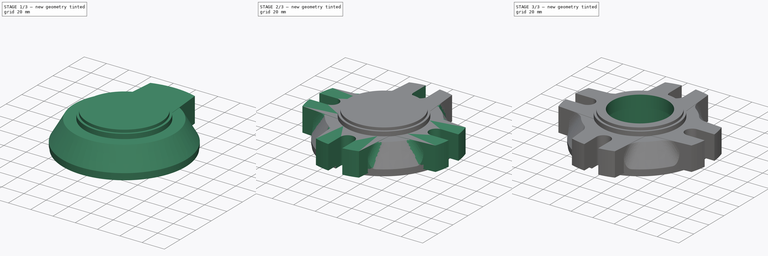
[diagram: build sequence overview — one tinted view per stage of 3, left to right]
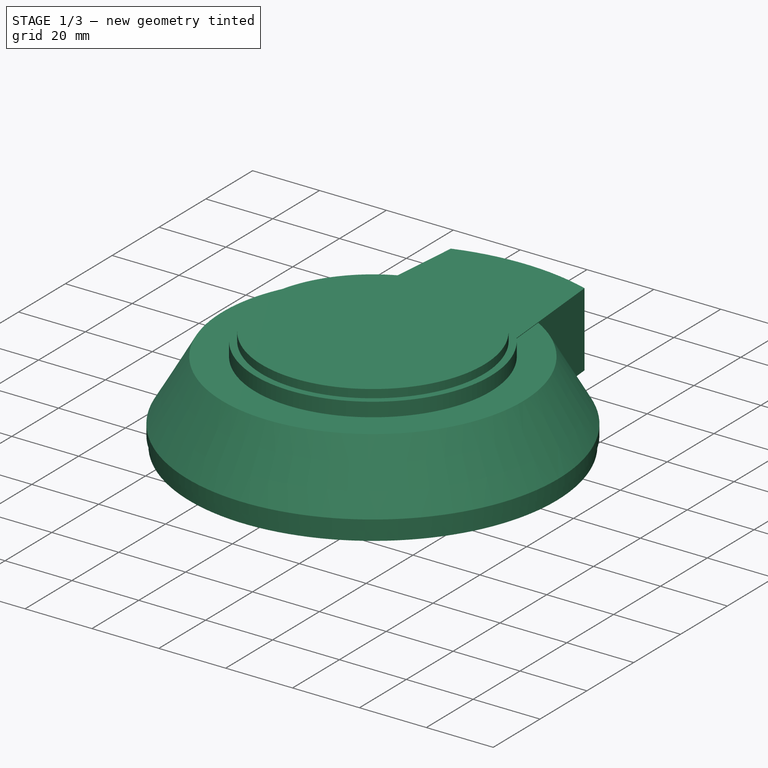
[diagram: stage 1 of 3 — iso view after this stage's code; geometry added in this stage tinted green]
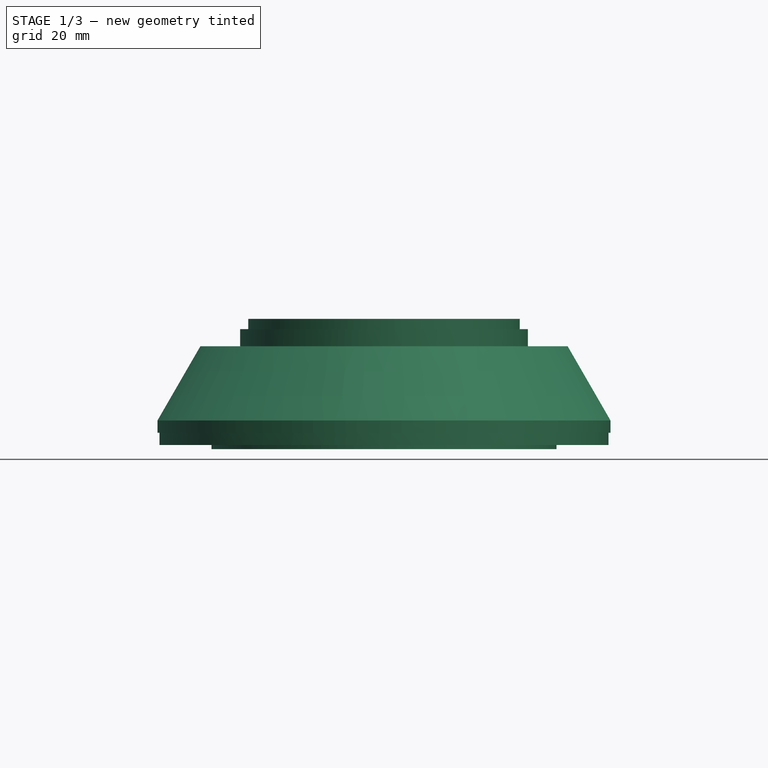
[diagram: stage 1 of 3 — front view after this stage's code; geometry added in this stage tinted green]
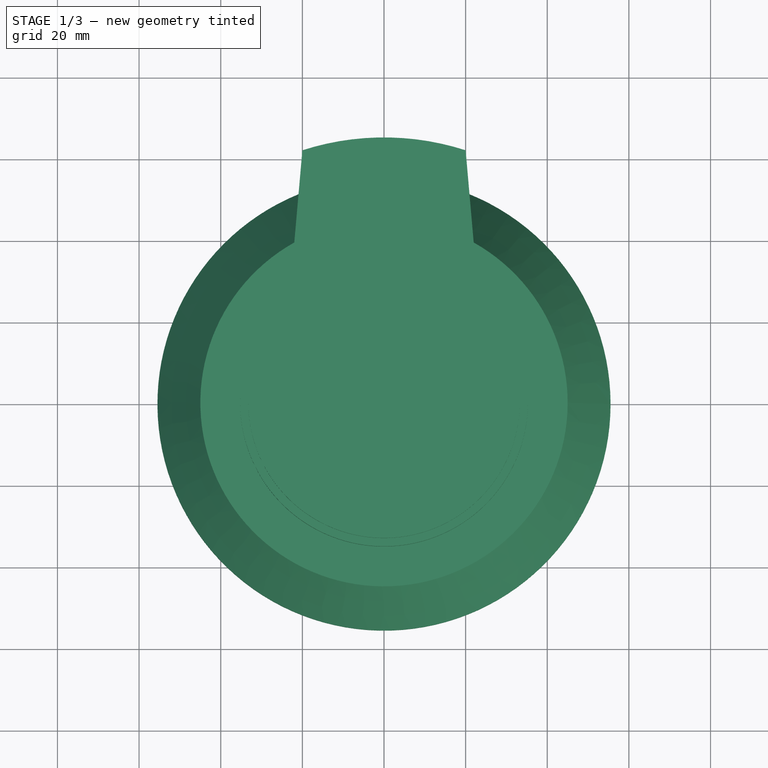
[diagram: stage 1 of 3 — top view after this stage's code; geometry added in this stage tinted green]
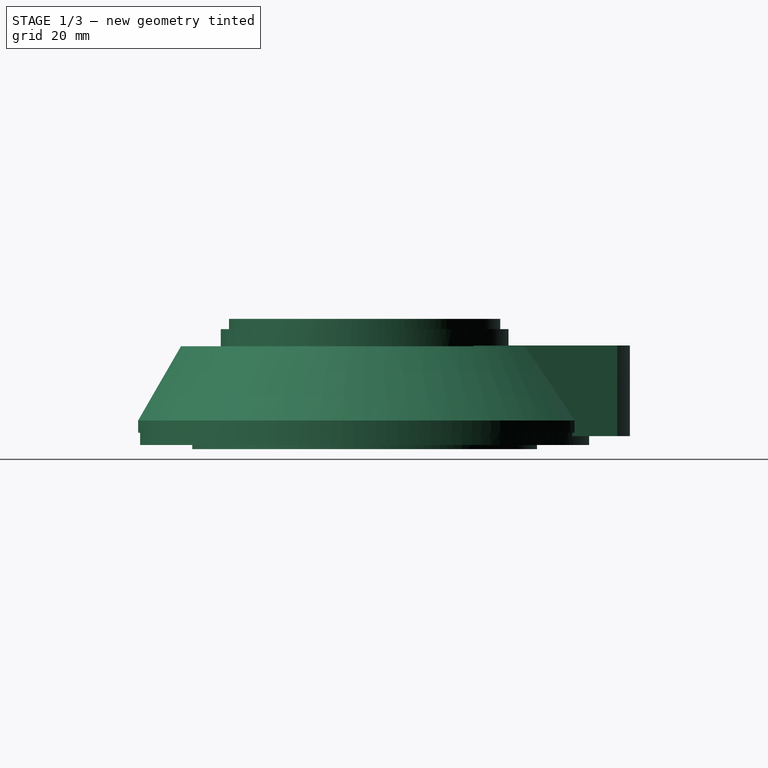
[diagram: stage 1 of 3 — right view after this stage's code; geometry added in this stage tinted green]
FCSTD DOCUMENT  (FreeCAD 0.21R33771 (Git))
Label: ex89
License: All rights reserved
LicenseURL: https://en.wikipedia.org/wiki/All_rights_reserved
objects: Sketcher::SketchObject×5, PartDesign::Pocket×3, PartDesign::Revolution×1, PartDesign::Pad×1, PartDesign::Fillet×1, PartDesign::PolarPattern×1, PartDesign::Body×1
note: 19 computed .brp shape members not serialized (recipe doc carries the construction recipe); baked Part::Feature solids carry a one-line shape summary decoded from their .brp

FEATURE [Sketcher::SketchObject] Sketch
  FullyConstrained = false
  MapMode = 5
  Placement = pos=(0,0,0) rot=(1,0,0;1.5708rad)
  Support = -> [XZ_Plane]
  sketch-geometry (13):
    g0: LineSegment StartX=0 StartY=6.51139 StartZ=0 EndX=33.25 EndY=6.51139 EndZ=0
    g1: LineSegment StartX=33.25 StartY=6.51139 StartZ=0 EndX=33.25 EndY=4.01139 EndZ=0
    g2: LineSegment StartX=33.25 StartY=4.01139 StartZ=0 EndX=35.25 EndY=4.01139 EndZ=0
    g3: LineSegment StartX=35.25 StartY=4.01139 StartZ=0 EndX=35.25 EndY=-0.188607 EndZ=0
    g4: LineSegment StartX=55.5 StartY=-18.3886 StartZ=0 EndX=55.5 EndY=-21.3886 EndZ=0
    g5: LineSegment StartX=55.5 StartY=-21.3886 StartZ=0 EndX=55 EndY=-21.3886 EndZ=0
    g6: LineSegment StartX=55 StartY=-21.3886 StartZ=0 EndX=55 EndY=-24.3886 EndZ=0
    g7: LineSegment StartX=55 StartY=-24.3886 StartZ=0 EndX=42.25 EndY=-24.3886 EndZ=0
    g8: LineSegment StartX=42.25 StartY=-24.3886 StartZ=0 EndX=42.25 EndY=-25.3886 EndZ=0
    g9: LineSegment StartX=42.25 StartY=-25.3886 StartZ=0 EndX=0 EndY=-25.3886 EndZ=0
    g10: LineSegment StartX=0 StartY=6.51139 StartZ=0 EndX=0 EndY=-25.3886 EndZ=0
    g11: LineSegment StartX=35.25 StartY=-0.188607 StartZ=0 EndX=44.9922 EndY=-0.188607 EndZ=0
    g12: LineSegment StartX=44.9922 StartY=-0.188607 StartZ=0 EndX=55.5 EndY=-18.3886 EndZ=0
  constraints (38):
    c: PointOnObject(g0,g-2)
    c: Horizontal(g0)
    c: Coincident(g0,g1)
    c: Coincident(g1,g2)
    c: Coincident(g2,g3)
    c: Coincident(g4,g5)
    c: Coincident(g5,g6)
    c: Coincident(g6,g7)
    c: Horizontal(g7)
    c: Coincident(g7,g8)
    c: Vertical(g8)
    c: Coincident(g8,g9)
    c: Coincident(g0,g10)
    c: Coincident(g10,g9)
    c: Vertical(g10)
    c: Vertical(g1)
    c: Vertical(g3)
    c: Horizontal(g2)
    c: Coincident(g3,g11)
    c: Horizontal(g11)
    c: Coincident(g11,g12)
    c: Coincident(g12,g4)
    c: Vertical(g4)
    c: Vertical(g6)
    c: Horizontal(g9)
    c: DistanceX(g0,g0) = 33.25
    c: Distance(g2,g10) = 35.25
    c: DistanceY(g8,g8) = 1
    c: DistanceX(g9,g9) = 42.25
    c: Distance(g6,g10) = 55
    c: Distance(g4,g10) = 55.5
    c: DistanceY(g6,g6) = 3
    c: Horizontal(g5)
    c: DistanceY(g4,g4) = 3
    c: DistanceY(g1,g1) = 2.5
    c: Distance(g2,g3) = 4.2
    c: Angle(g12,g4) = 2.61799
    c: DistanceY(g8,g0) = 31.9
FEATURE [PartDesign::Revolution] Revolution
  Angle = 360
  Axis = (1e-16,1e-16,1)
  Base = (0,0,0)
  Placement = pos=(0,0,0) rot=(1,0,0;1.5708rad)
  Profile = -> Sketch
  ReferenceAxis = -> Z_Axis
  Reversed = true
FEATURE [Sketcher::SketchObject] Sketch001
  FullyConstrained = true
  MapMode = 5
  Support = -> [XY_Plane]
  sketch-geometry (4):
    g0: ArcOfCircle CenterX=-1.1e-15 CenterY=0 CenterZ=0 NormalX=0 NormalY=0 NormalZ=1 AngleXU=0 Radius=65 StartAngle=1.25803 EndAngle=1.88356
    g1: LineSegment StartX=-20 StartY=61.8466 StartZ=0 EndX=-25.4109 EndY=0 EndZ=0
    g2: LineSegment StartX=20 StartY=61.8466 StartZ=0 EndX=25.4109 EndY=0 EndZ=0
    g3: LineSegment StartX=-25.4109 StartY=0 StartZ=0 EndX=25.4109 EndY=0 EndZ=0
  constraints (11):
    c: Coincident(g1,g0)
    c: PointOnObject(g1,g-1)
    c: Coincident(g2,g0)
    c: Coincident(g3,g1)
    c: Coincident(g3,g2)
    c: Symmetric(g1,g2,g-2)
    c: Radius(g0) = 65
    c: Symmetric(g0,g0,g-2)
    c: Angle(g1,g2) = 0.174533
    c: DistanceX(g0,g0) = 40
    c: Coincident(g0,g-1)
FEATURE [PartDesign::Pad] Pad
  BaseFeature = -> Revolution
  Direction = (0,0,1)
  Length = 22.2
  Length2 = 10
  Placement = pos=(0,0,0) rot=(1,0,0;1.5708rad)
  Profile = -> Sketch001
  ReferenceAxis = -> Sketch001 [N_Axis]
  Reversed = true
  Type = 0
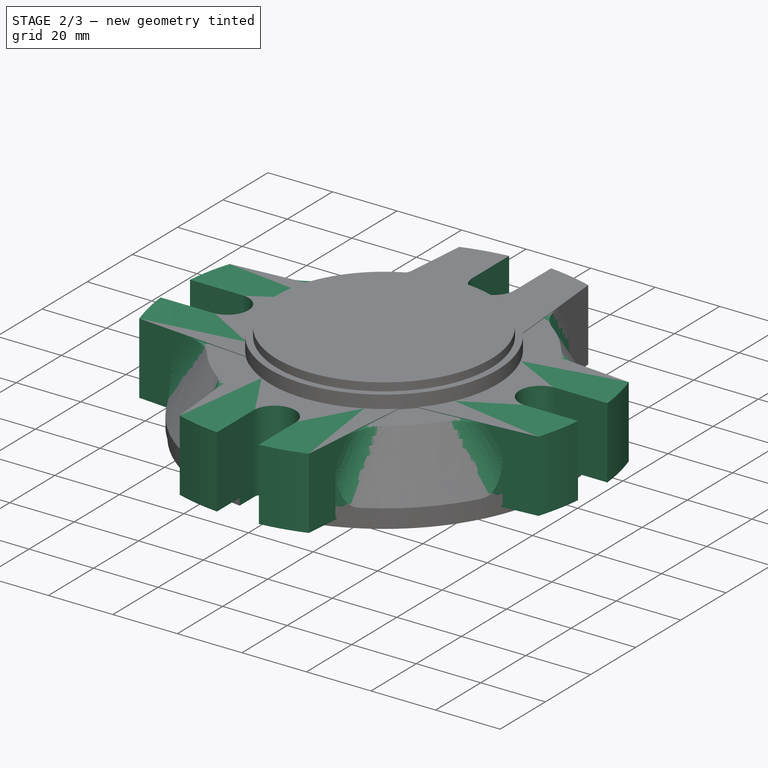
[diagram: stage 2 of 3 — iso view after this stage's code; geometry added in this stage tinted green]
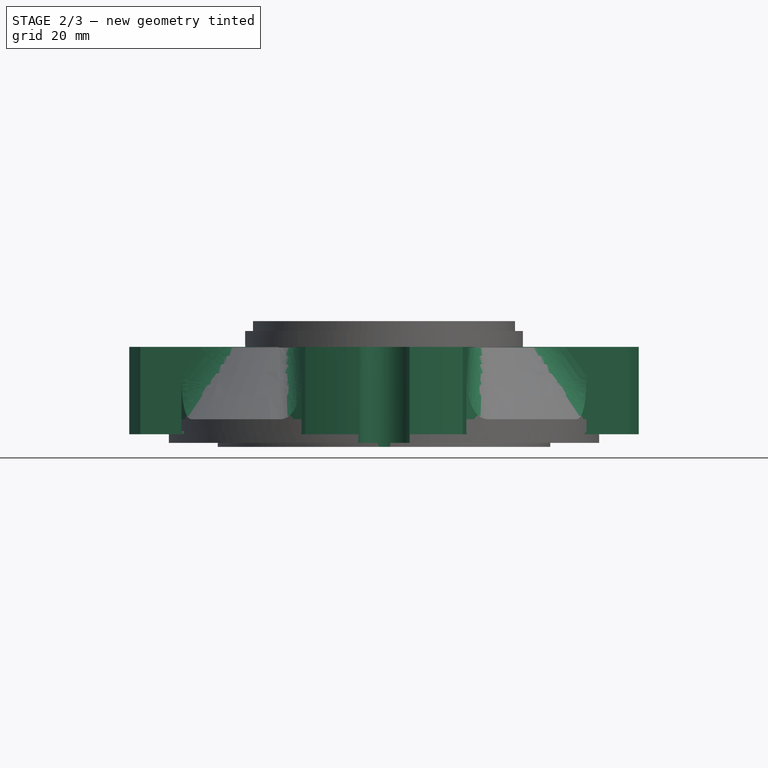
[diagram: stage 2 of 3 — front view after this stage's code; geometry added in this stage tinted green]
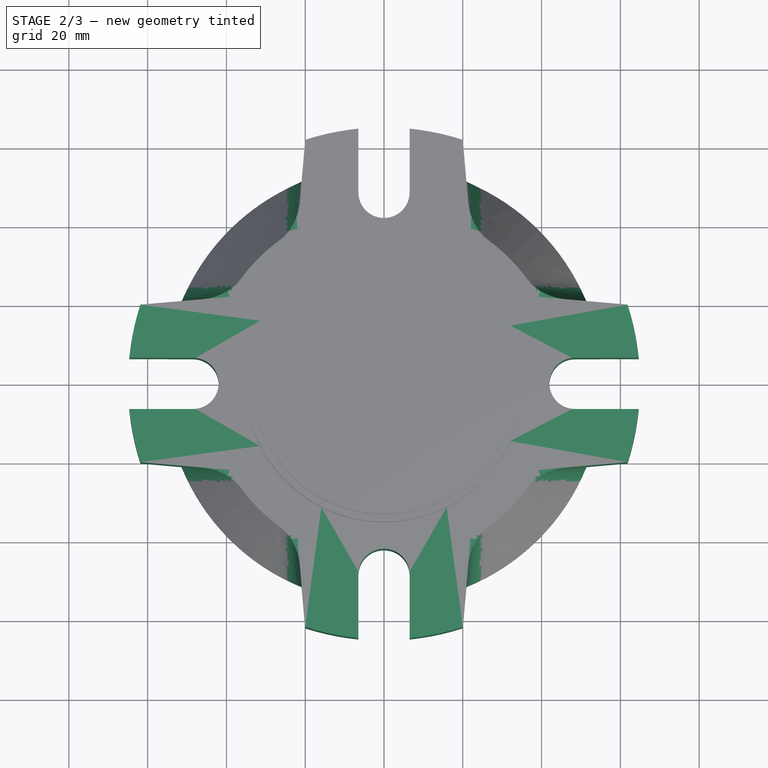
[diagram: stage 2 of 3 — top view after this stage's code; geometry added in this stage tinted green]
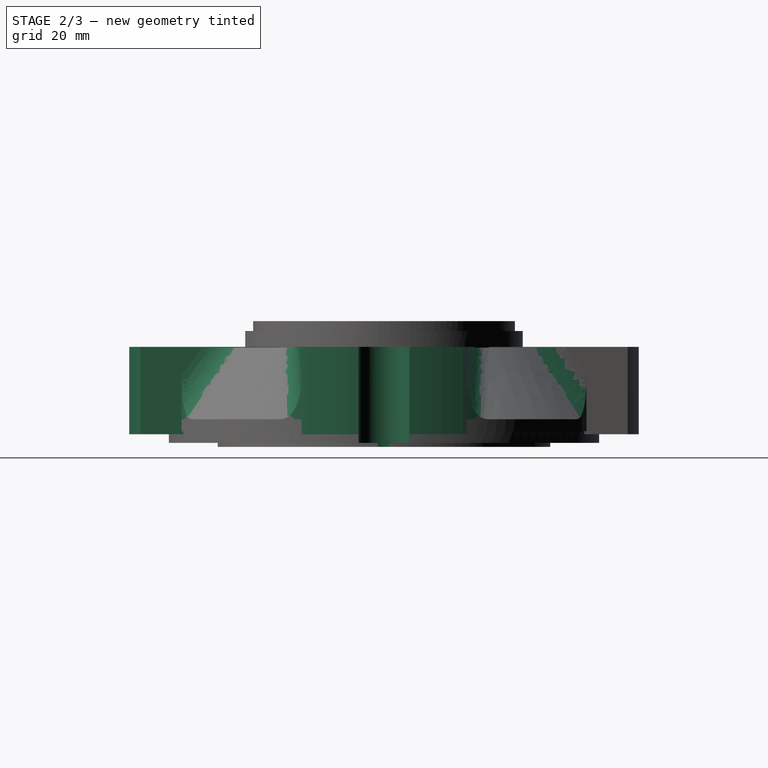
[diagram: stage 2 of 3 — right view after this stage's code; geometry added in this stage tinted green]
FEATURE [Sketcher::SketchObject] Sketch002
  FullyConstrained = false
  MapMode = 5
  Placement = pos=(0,0,0) rot=(0,0,1;3.14159rad)
  Support = -> [Pad]
  sketch-geometry (5):
    g0: ArcOfCircle CenterX=0 CenterY=-48.5 CenterZ=0 NormalX=0 NormalY=0 NormalZ=1 AngleXU=0 Radius=6.5 StartAngle=-1.6e-14 EndAngle=3.14159
    g1: ArcOfCircle CenterX=0 CenterY=-71.692 CenterZ=0 NormalX=0 NormalY=0 NormalZ=1 AngleXU=0 Radius=6.5 StartAngle=3.14159 EndAngle=6.28319
    g2: LineSegment StartX=-6.5 StartY=-48.5 StartZ=0 EndX=-6.5 EndY=-71.692 EndZ=0
    g3: LineSegment StartX=6.5 StartY=-71.692 StartZ=0 EndX=6.5 EndY=-48.5 EndZ=0
    g4: GeomPoint X=0 Y=-42 Z=0
  constraints (10):
    c: Tangent(g0,g2) = -1.5708
    c: Tangent(g2,g1) = -1.5708
    c: Tangent(g1,g3) = -1.5708
    c: Tangent(g3,g0) = -1.5708
    c: Equal(g0,g1)
    c: PointOnObject(g0,g-2)
    c: PointOnObject(g1,g-2)
    c: Distance(g0,g0) = 13
    c: PointOnObject(g4,g0)
    c: Distance(g-1,g4) = 42
FEATURE [PartDesign::Pocket] Pocket
  BaseFeature = -> Pad
  Direction = (0,0,-1)
  Length = 5
  Length2 = 5
  Placement = pos=(0,0,0) rot=(1,0,0;1.5708rad)
  Profile = -> Sketch002
  ReferenceAxis = -> Sketch002 [N_Axis]
  Type = 1
FEATURE [PartDesign::Fillet] Fillet
  Base = -> Pocket [Edge28,Edge16]
  BaseFeature = -> Pocket
  Placement = pos=(0,0,0) rot=(1,0,0;1.5708rad)
  Radius = 10
  SupportTransform = false
  UseAllEdges = false
FEATURE [PartDesign::PolarPattern] PolarPattern
  Angle = 360
  Axis = -> Sketch001 [N_Axis]
  BaseFeature = -> Fillet
  Occurrences = 4
  Originals = -> [Pad,Pocket,Fillet]
  Placement = pos=(0,0,0) rot=(1,0,0;1.5708rad)
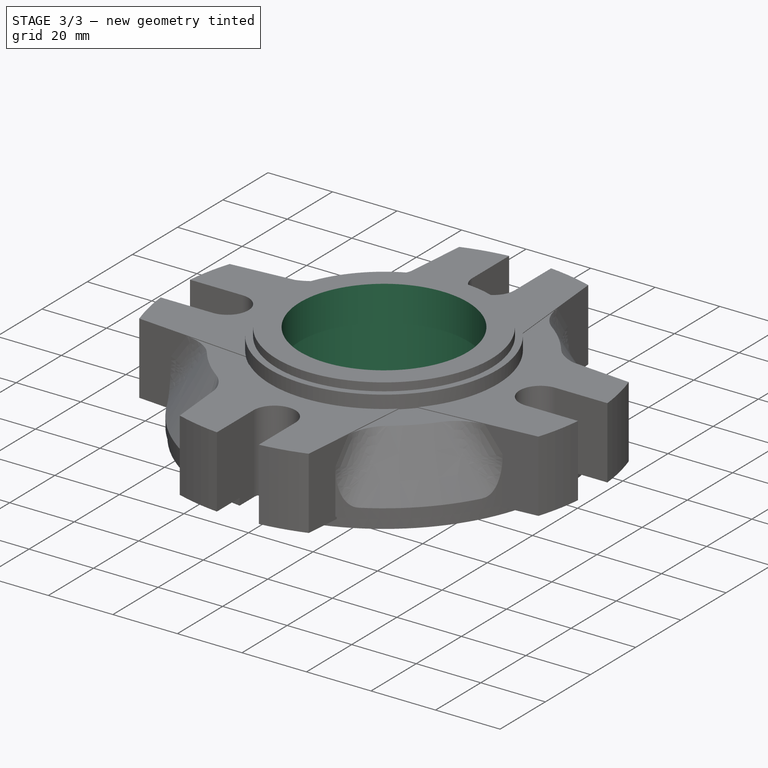
[diagram: stage 3 of 3 — iso view after this stage's code; geometry added in this stage tinted green]
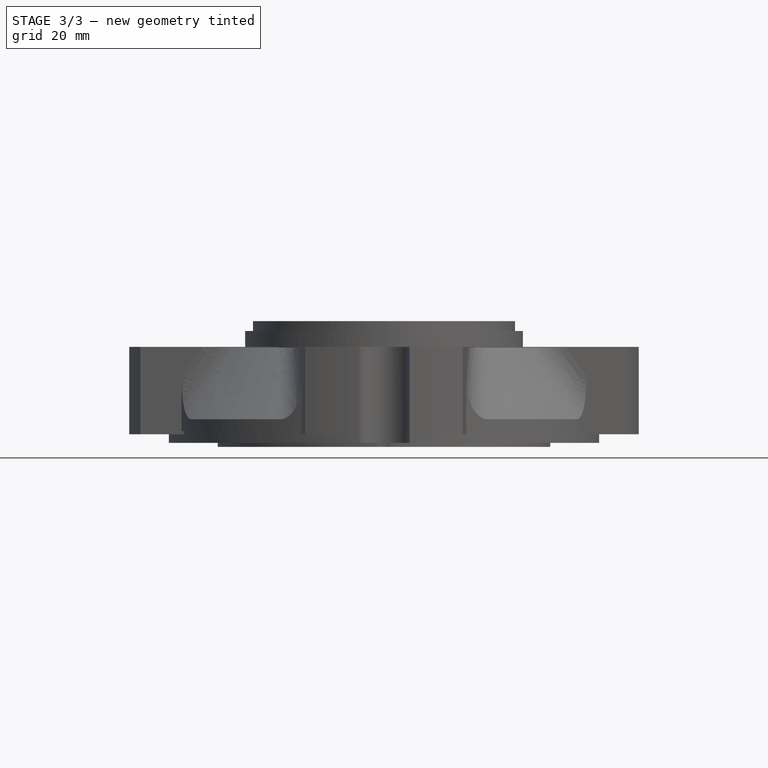
[diagram: stage 3 of 3 — front view after this stage's code; geometry added in this stage tinted green]
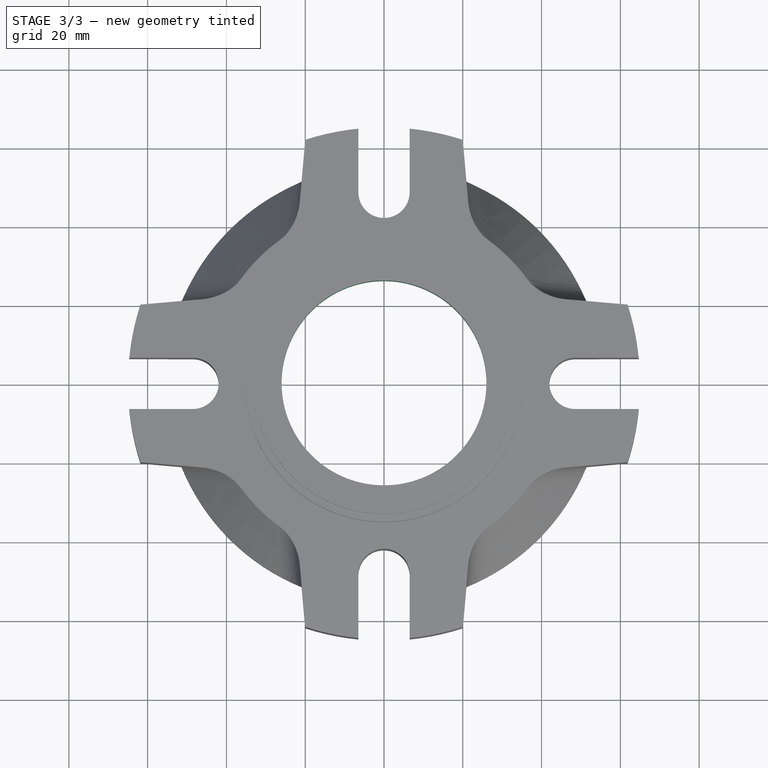
[diagram: stage 3 of 3 — top view after this stage's code; geometry added in this stage tinted green]
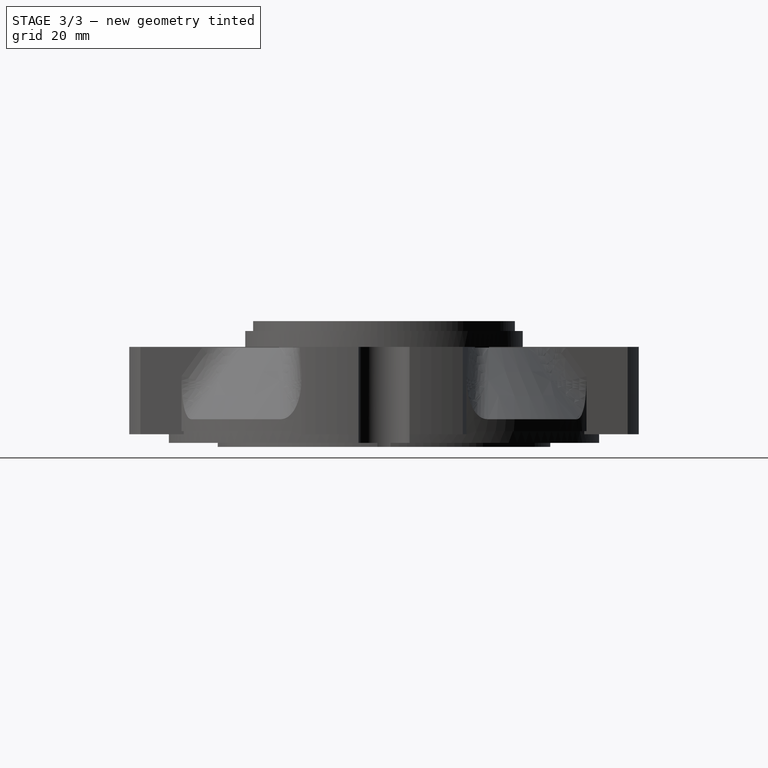
[diagram: stage 3 of 3 — right view after this stage's code; geometry added in this stage tinted green]
FEATURE [Sketcher::SketchObject] Sketch003
  FullyConstrained = true
  MapMode = 5
  Placement = pos=(7e-16,7e-16,6.51139) rot=(0,0,1;3.14159rad)
  Support = -> [PolarPattern]
  sketch-geometry (1):
    g0: Circle CenterX=0 CenterY=0 CenterZ=0 NormalX=0 NormalY=0 NormalZ=1 AngleXU=0 Radius=26
  constraints (2):
    c: Coincident(g0,g-1)
    c: Radius(g0) = 26
FEATURE [PartDesign::Pocket] Pocket001
  BaseFeature = -> PolarPattern
  Direction = (-1e-16,-1e-16,-1)
  Length = 5
  Length2 = 5
  Placement = pos=(0,0,0) rot=(1,0,0;1.5708rad)
  Profile = -> Sketch003
  ReferenceAxis = -> Sketch003 [N_Axis]
  Type = 1
FEATURE [Sketcher::SketchObject] Sketch004
  FullyConstrained = true
  MapMode = 5
  Placement = pos=(-2.8e-15,-2.8e-15,-25.3886) rot=(1,0,0;3.14159rad)
  Support = -> [Pocket001]
  sketch-geometry (1):
    g0: Circle CenterX=0 CenterY=0 CenterZ=0 NormalX=0 NormalY=0 NormalZ=1 AngleXU=0 Radius=31.5
  constraints (2):
    c: Coincident(g0,g-1)
    c: Radius(g0) = 31.5
FEATURE [PartDesign::Pocket] Pocket002
  BaseFeature = -> Pocket001
  Direction = (1e-16,1e-16,1)
  Length = 21
  Length2 = 5
  Placement = pos=(0,0,0) rot=(1,0,0;1.5708rad)
  Profile = -> Sketch004
  ReferenceAxis = -> Sketch004 [N_Axis]
  Type = 0
FEATURE [PartDesign::Body] Body
  Group = -> [Sketch,Revolution,Sketch001,Pad,Sketch002,Pocket,Fillet,PolarPattern,Sketch003,Pocket001,Sketch004,Pocket002]
  Origin = -> Origin
  Tip = -> Pocket002
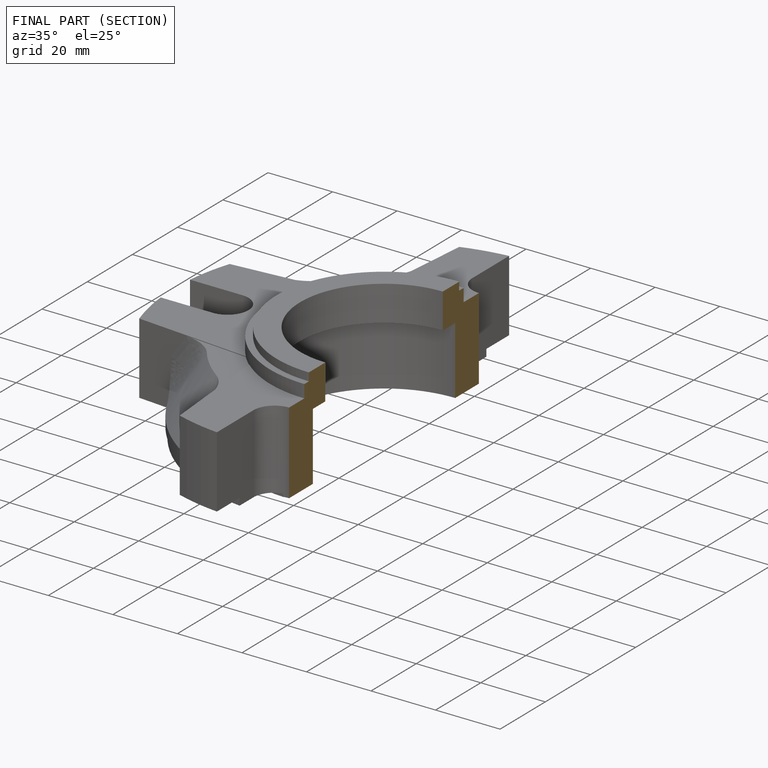
[diagram: finished part — half-section view (interior)]
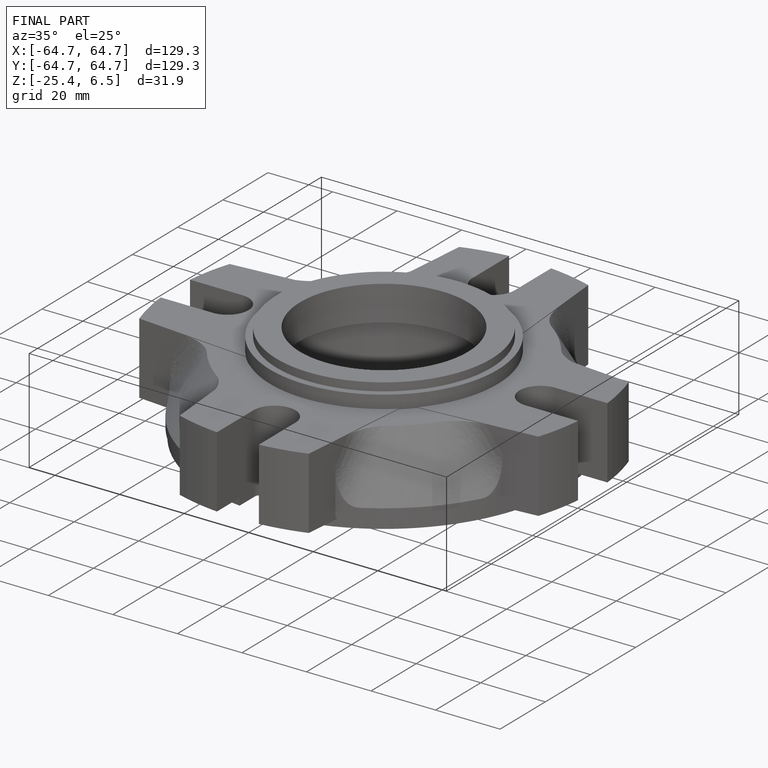
[diagram: finished part — iso view with bounding-box wireframe]
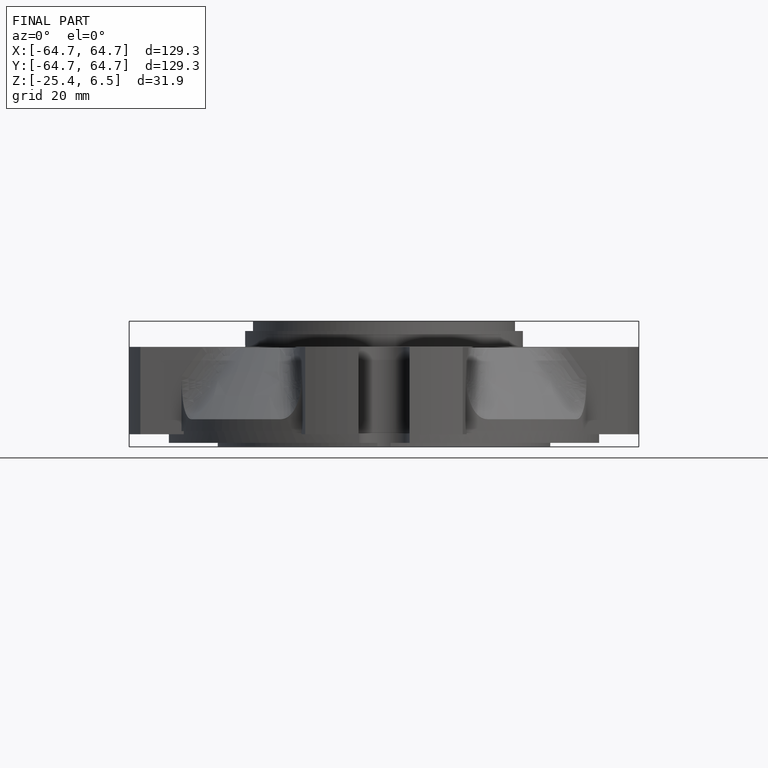
[diagram: finished part — front view with bounding-box wireframe]
